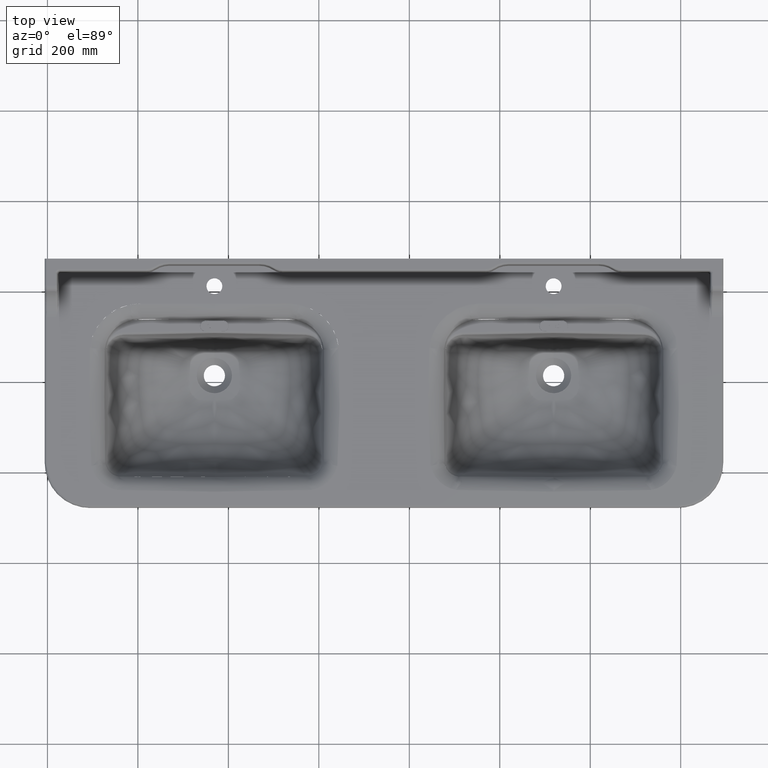
[diagram: clean part render]
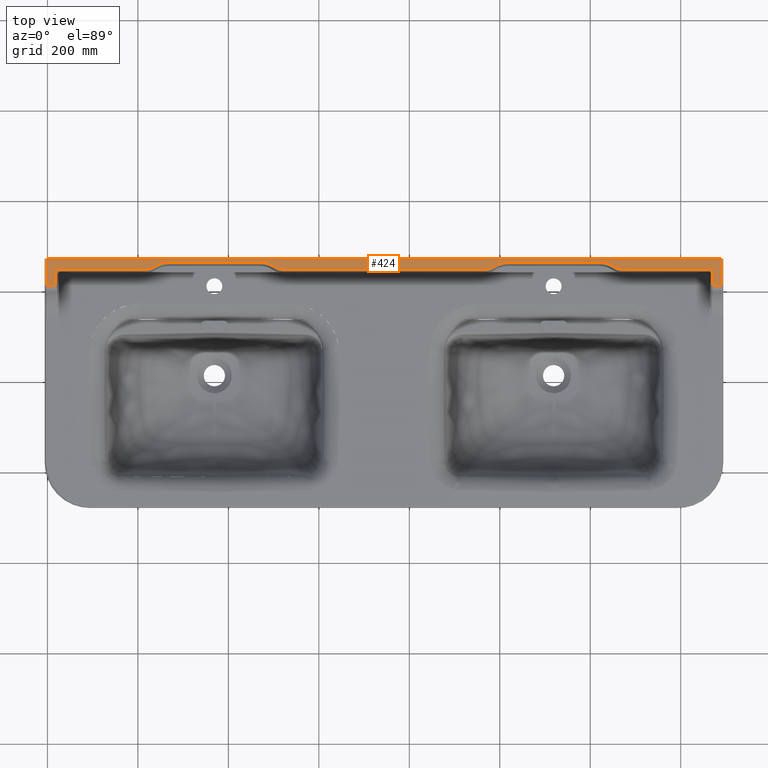
[diagram: same view with one face highlighted and labeled with its STEP entity id]
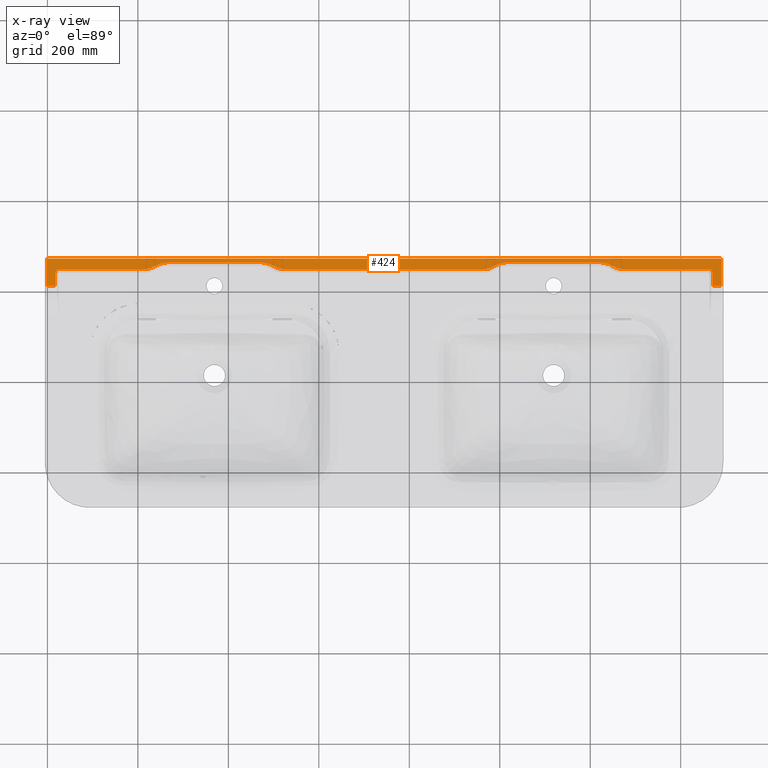
[diagram: x-ray of the same camera — body ghosted, the highlighted face saturated]
A machine part, top view. The second image highlights one B-rep face of the part: STEP entity #424.
The next image is the same camera in x-ray: the body ghosted, the highlighted face saturated — about 0% of this face is hidden behind the body in this view.
In plain terms, the highlighted planar face has unit normal (0, 0, 1).
Its self-contained STEP definition (entity closure, byte-faithful):
#424=ADVANCED_FACE($,(#1069),#7981,.T.);
#1069=FACE_OUTER_BOUND($,#1730,.T.);
#1730=EDGE_LOOP($,(#3823,#3824,#3825,#3826,#3827,#3828,#3829,#3830,#3831,
#3832,#3833,#3834,#3835,#3836,#3837,#3838,#3839,#3840,#3841,#3842,#3843,
#3844,#3845,#3846));
#3823=ORIENTED_EDGE($,*,*,#5426,.F.);
#3824=ORIENTED_EDGE($,*,*,#6288,.F.);
#3825=ORIENTED_EDGE($,*,*,#5423,.F.);
#3826=ORIENTED_EDGE($,*,*,#5671,.F.);
#3827=ORIENTED_EDGE($,*,*,#5412,.F.);
#3828=ORIENTED_EDGE($,*,*,#6264,.T.);
#3829=ORIENTED_EDGE($,*,*,#5381,.F.);
#3830=ORIENTED_EDGE($,*,*,#6048,.F.);
#3831=ORIENTED_EDGE($,*,*,#5472,.F.);
#3832=ORIENTED_EDGE($,*,*,#5469,.F.);
#3833=ORIENTED_EDGE($,*,*,#6289,.F.);
#3834=ORIENTED_EDGE($,*,*,#5467,.F.);
#3835=ORIENTED_EDGE($,*,*,#5462,.F.);
#3836=ORIENTED_EDGE($,*,*,#5459,.F.);
#3837=ORIENTED_EDGE($,*,*,#5456,.F.);
#3838=ORIENTED_EDGE($,*,*,#5453,.F.);
#3839=ORIENTED_EDGE($,*,*,#5450,.F.);
#3840=ORIENTED_EDGE($,*,*,#5447,.F.);
#3841=ORIENTED_EDGE($,*,*,#5444,.F.);
#3842=ORIENTED_EDGE($,*,*,#5441,.F.);
#3843=ORIENTED_EDGE($,*,*,#5438,.F.);
#3844=ORIENTED_EDGE($,*,*,#5435,.F.);
#3845=ORIENTED_EDGE($,*,*,#5432,.F.);
#3846=ORIENTED_EDGE($,*,*,#5429,.F.);
#5381=EDGE_CURVE($,#7038,#7037,#9195,.T.);
#5412=EDGE_CURVE($,#7059,#7057,#9203,.T.);
#5423=EDGE_CURVE($,#7065,#7067,#9206,.T.);
#5426=EDGE_CURVE($,#7069,#7071,#8690,.T.);
#5429=EDGE_CURVE($,#7071,#7073,#9208,.T.);
#5432=EDGE_CURVE($,#7073,#7075,#8694,.T.);
#5435=EDGE_CURVE($,#7075,#7077,#8697,.T.);
#5438=EDGE_CURVE($,#7077,#7079,#9210,.T.);
#5441=EDGE_CURVE($,#7079,#7081,#8701,.T.);
#5444=EDGE_CURVE($,#7081,#7083,#8704,.T.);
#5447=EDGE_CURVE($,#7083,#7085,#9212,.T.);
#5450=EDGE_CURVE($,#7085,#7087,#8708,.T.);
#5453=EDGE_CURVE($,#7087,#7089,#8711,.T.);
#5456=EDGE_CURVE($,#7089,#7091,#9214,.T.);
#5459=EDGE_CURVE($,#7091,#7093,#8715,.T.);
#5462=EDGE_CURVE($,#7093,#7096,#8718,.T.);
#5467=EDGE_CURVE($,#7096,#7097,#9217,.T.);
#5469=EDGE_CURVE($,#7099,#7101,#8723,.T.);
#5472=EDGE_CURVE($,#7101,#7103,#9218,.T.);
#5671=EDGE_CURVE($,#7057,#7065,#9323,.T.);
#6048=EDGE_CURVE($,#7103,#7038,#9525,.T.);
#6264=EDGE_CURVE($,#7059,#7037,#9644,.T.);
#6288=EDGE_CURVE($,#7067,#7069,#9097,.T.);
#6289=EDGE_CURVE($,#7097,#7099,#9098,.T.);
#7037=VERTEX_POINT($,#248005);
#7038=VERTEX_POINT($,#248006);
#7057=VERTEX_POINT($,#248025);
#7059=VERTEX_POINT($,#248027);
#7065=VERTEX_POINT($,#248033);
#7067=VERTEX_POINT($,#248035);
#7069=VERTEX_POINT($,#248037);
#7071=VERTEX_POINT($,#248039);
#7073=VERTEX_POINT($,#248041);
#7075=VERTEX_POINT($,#248043);
#7077=VERTEX_POINT($,#248045);
#7079=VERTEX_POINT($,#248047);
#7081=VERTEX_POINT($,#248049);
#7083=VERTEX_POINT($,#248051);
#7085=VERTEX_POINT($,#248053);
#7087=VERTEX_POINT($,#248055);
#7089=VERTEX_POINT($,#248057);
#7091=VERTEX_POINT($,#248059);
#7093=VERTEX_POINT($,#248061);
#7096=VERTEX_POINT($,#248064);
#7097=VERTEX_POINT($,#248065);
#7099=VERTEX_POINT($,#248067);
#7101=VERTEX_POINT($,#248069);
#7103=VERTEX_POINT($,#248071);
#7981=PLANE($,#10415);
#8690=(
BOUNDED_CURVE()
B_SPLINE_CURVE(3,(#12220,#12221,#12222,#12223,#12224,#12225,#12226,#12227,
#12228,#12229),.UNSPECIFIED.,.F.,.F.)
B_SPLINE_CURVE_WITH_KNOTS((4,2,2,2,4),(2.42861286636754E-15,0.196007158881765,
0.392014317763527,0.588021476645289,0.784028635527051),.UNSPECIFIED.)
CURVE()
GEOMETRIC_REPRESENTATION_ITEM()
RATIONAL_B_SPLINE_CURVE((1.,1.,1.,1.,1.,1.,1.,1.,1.,1.))
REPRESENTATION_ITEM($)
);
#8694=(
BOUNDED_CURVE()
B_SPLINE_CURVE(3,(#12250,#12251,#12252,#12253,#12254,#12255,#12256,#12257,
#12258,#12259,#12260,#12261,#12262,#12263,#12264,#12265,#12266,#12267,#12268,
#12269,#12270,#12271),.UNSPECIFIED.,.F.,.F.)
B_SPLINE_CURVE_WITH_KNOTS((4,2,2,2,2,2,2,2,2,2,4),(0.,0.00215343023223315,
0.00430686046446629,0.00646029069669944,0.00861372092893258,0.00969043604504916,
0.0102287936031074,0.0107671511611657,0.0129205813933989,0.015074011625632,
0.0172274418578652),.UNSPECIFIED.)
CURVE()
GEOMETRIC_REPRESENTATION_ITEM()
RATIONAL_B_SPLINE_CURVE((1.,1.,1.,1.,1.,1.,1.,1.,1.,1.,1.,1.,1.,1.,1.,1.,
1.,1.,1.,1.,1.,1.))
REPRESENTATION_ITEM($)
);
#8697=(
BOUNDED_CURVE()
B_SPLINE_CURVE(2,(#12297,#12298,#12299),.UNSPECIFIED.,.F.,.F.)
B_SPLINE_CURVE_WITH_KNOTS((3,3),(3.61577023155826,4.19466756455424),.UNSPECIFIED.)
CURVE()
GEOMETRIC_REPRESENTATION_ITEM()
RATIONAL_B_SPLINE_CURVE((1.,0.95840138490879,1.))
REPRESENTATION_ITEM($)
);
#8701=(
BOUNDED_CURVE()
B_SPLINE_CURVE(2,(#12313,#12314,#12315),.UNSPECIFIED.,.F.,.F.)
B_SPLINE_CURVE_WITH_KNOTS((3,3),(3.61577023155826,4.19466756455424),.UNSPECIFIED.)
CURVE()
GEOMETRIC_REPRESENTATION_ITEM()
RATIONAL_B_SPLINE_CURVE((1.,0.958401384909011,1.))
REPRESENTATION_ITEM($)
);
#8704=(
BOUNDED_CURVE()
B_SPLINE_CURVE(3,(#12322,#12323,#12324,#12325,#12326,#12327,#12328,#12329,
#12330,#12331,#12332,#12333,#12334,#12335,#12336,#12337,#12338,#12339),.UNSPECIFIED.,
.F.,.F.)
B_SPLINE_CURVE_WITH_KNOTS((4,2,2,2,2,2,2,2,4),(-0.0172826635422491,-0.015122330599468,
-0.0129619976566869,-0.0108016647139057,-0.00864133177112457,-0.00648099882834343,
-0.00432066588556229,-0.00216033294278114,2.16840434497101E-19),.UNSPECIFIED.)
CURVE()
GEOMETRIC_REPRESENTATION_ITEM()
RATIONAL_B_SPLINE_CURVE((1.,1.,1.,1.,1.,1.,1.,1.,1.,1.,1.,1.,1.,1.,1.,1.,
1.,1.))
REPRESENTATION_ITEM($)
);
#8708=(
BOUNDED_CURVE()
B_SPLINE_CURVE(3,(#12368,#12369,#12370,#12371,#12372,#12373,#12374,#12375,
#12376,#12377,#12378,#12379,#12380,#12381,#12382,#12383,#12384,#12385,#12386,
#12387,#12388,#12389),.UNSPECIFIED.,.F.,.F.)
B_SPLINE_CURVE_WITH_KNOTS((4,2,2,2,2,2,2,2,2,2,4),(0.,0.00215343023223313,
0.00430686046446626,0.0064602906966994,0.00861372092893253,0.00969043604504909,
0.0102287936031074,0.0107671511611657,0.0129205813933988,0.0150740116256319,
0.0172274418578651),.UNSPECIFIED.)
CURVE()
GEOMETRIC_REPRESENTATION_ITEM()
RATIONAL_B_SPLINE_CURVE((1.,1.,1.,1.,1.,1.,1.,1.,1.,1.,1.,1.,1.,1.,1.,1.,
1.,1.,1.,1.,1.,1.))
REPRESENTATION_ITEM($)
);
#8711=(
BOUNDED_CURVE()
B_SPLINE_CURVE(2,(#12415,#12416,#12417),.UNSPECIFIED.,.F.,.F.)
B_SPLINE_CURVE_WITH_KNOTS((3,3),(3.61577023155826,4.19466756455424),.UNSPECIFIED.)
CURVE()
GEOMETRIC_REPRESENTATION_ITEM()
RATIONAL_B_SPLINE_CURVE((1.,0.958401384908785,1.))
REPRESENTATION_ITEM($)
);
#8715=(
BOUNDED_CURVE()
B_SPLINE_CURVE(2,(#12431,#12432,#12433),.UNSPECIFIED.,.F.,.F.)
B_SPLINE_CURVE_WITH_KNOTS((3,3),(3.61577023155826,4.19466756455424),.UNSPECIFIED.)
CURVE()
GEOMETRIC_REPRESENTATION_ITEM()
RATIONAL_B_SPLINE_CURVE((1.,0.958401384909014,1.))
REPRESENTATION_ITEM($)
);
#8718=(
BOUNDED_CURVE()
B_SPLINE_CURVE(3,(#12440,#12441,#12442,#12443,#12444,#12445,#12446,#12447,
#12448,#12449,#12450,#12451,#12452,#12453,#12454,#12455,#12456,#12457),.UNSPECIFIED.,
.F.,.F.)
B_SPLINE_CURVE_WITH_KNOTS((4,2,2,2,2,2,2,2,4),(-0.0172826635422491,-0.015122330599468,
-0.0129619976566868,-0.0108016647139057,-0.00864133177112457,-0.00648099882834342,
-0.00432066588556228,-0.00216033294278114,-2.16840434497101E-19),.UNSPECIFIED.)
CURVE()
GEOMETRIC_REPRESENTATION_ITEM()
RATIONAL_B_SPLINE_CURVE((1.,1.,1.,1.,1.,1.,1.,1.,1.,1.,1.,1.,1.,1.,1.,1.,
1.,1.))
REPRESENTATION_ITEM($)
);
#8723=(
BOUNDED_CURVE()
B_SPLINE_CURVE(3,(#12489,#12490,#12491,#12492,#12493,#12494,#12495,#12496,
#12497,#12498),.UNSPECIFIED.,.F.,.F.)
B_SPLINE_CURVE_WITH_KNOTS((4,2,2,2,4),(1.90819582357449E-15,0.196007158881765,
0.392014317763528,0.58802147664529,0.784028635527053),.UNSPECIFIED.)
CURVE()
GEOMETRIC_REPRESENTATION_ITEM()
RATIONAL_B_SPLINE_CURVE((1.,1.,1.,1.,1.,1.,1.,1.,1.,1.))
REPRESENTATION_ITEM($)
);
#9097=(
BOUNDED_CURVE()
B_SPLINE_CURVE(3,(#23916,#23917,#23918,#23919,#23920,#23921,#23922,#23923,
#23924,#23925),.UNSPECIFIED.,.F.,.F.)
B_SPLINE_CURVE_WITH_KNOTS((4,2,2,2,4),(5.49915667165253,5.6951638305343,
5.89117098941606,6.08717814829783,6.28318530717959),.UNSPECIFIED.)
CURVE()
GEOMETRIC_REPRESENTATION_ITEM()
RATIONAL_B_SPLINE_CURVE((1.,1.,1.,1.,1.,1.,1.,1.,1.,1.))
REPRESENTATION_ITEM($)
);
#9098=(
BOUNDED_CURVE()
B_SPLINE_CURVE(3,(#23926,#23927,#23928,#23929,#23930,#23931,#23932,#23933,
#23934,#23935),.UNSPECIFIED.,.F.,.F.)
B_SPLINE_CURVE_WITH_KNOTS((4,2,2,2,4),(5.49915667165253,5.69516383053429,
5.89117098941606,6.08717814829782,6.28318530717959),.UNSPECIFIED.)
CURVE()
GEOMETRIC_REPRESENTATION_ITEM()
RATIONAL_B_SPLINE_CURVE((1.,1.,1.,1.,1.,1.,1.,1.,1.,1.))
REPRESENTATION_ITEM($)
);
#9195=B_SPLINE_CURVE_WITH_KNOTS($,1,(#12062,#12063),.UNSPECIFIED.,.F.,.F.,
(2,2),(5.71238898038469,6.71238898038469),.UNSPECIFIED.);
#9203=B_SPLINE_CURVE_WITH_KNOTS($,1,(#12147,#12148),.UNSPECIFIED.,.F.,.F.,
(2,2),(1.5707963267949,2.5707963267949),.UNSPECIFIED.);
#9206=B_SPLINE_CURVE_WITH_KNOTS($,1,(#12213,#12214),.UNSPECIFIED.,.F.,.F.,
(2,2),(5.60766922514539,6.60766922514539),.UNSPECIFIED.);
#9208=B_SPLINE_CURVE_WITH_KNOTS($,1,(#12243,#12244),.UNSPECIFIED.,.F.,.F.,
(2,2),(4.03687289836089,5.03687289836089),.UNSPECIFIED.);
#9210=B_SPLINE_CURVE_WITH_KNOTS($,1,(#12306,#12307),.UNSPECIFIED.,.F.,.F.,
(2,2),(4.03687289856066,5.03687289856066),.UNSPECIFIED.);
#9212=B_SPLINE_CURVE_WITH_KNOTS($,1,(#12361,#12362),.UNSPECIFIED.,.F.,.F.,
(2,2),(4.03687289836094,5.03687289836094),.UNSPECIFIED.);
#9214=B_SPLINE_CURVE_WITH_KNOTS($,1,(#12424,#12425),.UNSPECIFIED.,.F.,.F.,
(2,2),(4.03687289856066,5.03687289856066),.UNSPECIFIED.);
#9217=B_SPLINE_CURVE_WITH_KNOTS($,1,(#12484,#12485),.UNSPECIFIED.,.F.,.F.,
(2,2),(4.03687289856066,5.03687289856066),.UNSPECIFIED.);
#9218=B_SPLINE_CURVE_WITH_KNOTS($,1,(#12512,#12513),.UNSPECIFIED.,.F.,.F.,
(2,2),(4.03687289855019,5.03687289855019),.UNSPECIFIED.);
#9323=B_SPLINE_CURVE_WITH_KNOTS($,1,(#15541,#15542),.UNSPECIFIED.,.F.,.F.,
(2,2),(0.,1.),.UNSPECIFIED.);
#9525=B_SPLINE_CURVE_WITH_KNOTS($,1,(#20845,#20846),.UNSPECIFIED.,.F.,.F.,
(2,2),(2.,3.),.UNSPECIFIED.);
#9644=B_SPLINE_CURVE_WITH_KNOTS($,1,(#23531,#23532),.UNSPECIFIED.,.F.,.F.,
(2,2),(5.,6.),.UNSPECIFIED.);
#10415=AXIS2_PLACEMENT_3D($,#247054,#10529,$);
#10529=DIRECTION($,(0.,0.,1.));
#12062=CARTESIAN_POINT($,(-400.914848342291,209.795639608981,249.999999999979));
#12063=CARTESIAN_POINT($,(-400.914848342348,269.151754377924,249.999999999963));
#12147=CARTESIAN_POINT($,(1089.08515165765,269.151754377924,249.999999999963));
#12148=CARTESIAN_POINT($,(1089.08515165771,209.795639609094,249.999999999979));
#12213=CARTESIAN_POINT($,(1071.18832455865,209.795639608924,249.999999999963));
#12214=CARTESIAN_POINT($,(1071.18832455865,236.268631931924,249.999999999768));
#12220=CARTESIAN_POINT($,(1068.26506353365,243.331666253924,249.999999999963));
#12221=CARTESIAN_POINT($,(1067.80306502565,243.793664760924,249.999999999963));
#12222=CARTESIAN_POINT($,(1067.29554228765,244.210095536924,249.999999999963));
#12223=CARTESIAN_POINT($,(1066.20880403265,244.935945537924,249.999999999963));
#12224=CARTESIAN_POINT($,(1065.62962039965,245.245341737924,249.999999999963));
#12225=CARTESIAN_POINT($,(1064.42174818365,245.745258007924,249.999999999963));
#12226=CARTESIAN_POINT($,(1063.79308925565,245.935765803924,249.999999999963));
#12227=CARTESIAN_POINT($,(1062.51033970965,246.190603567924,249.999999999963));
#12228=CARTESIAN_POINT($,(1061.85628816465,246.254927278924,249.999999999963));
#12229=CARTESIAN_POINT($,(1061.20202921165,246.254927278924,249.999999999963));
#12243=CARTESIAN_POINT($,(1061.20202921165,246.254927278924,249.999999999963));
#12244=CARTESIAN_POINT($,(869.452420476973,246.25492727908,249.999999999866));
#12250=CARTESIAN_POINT($,(869.452420476973,246.25492727908,249.999999999866));
#12251=CARTESIAN_POINT($,(868.724278780956,246.254927279068,249.99999999987));
#12252=CARTESIAN_POINT($,(868.00064543394,246.281429079057,249.999999999874));
#12253=CARTESIAN_POINT($,(866.562153211907,246.385929729034,249.999999999882));
#12254=CARTESIAN_POINT($,(865.847292435891,246.463931448022,249.999999999886));
#12255=CARTESIAN_POINT($,(864.426229109858,246.670777375999,249.999999999894));
#12256=CARTESIAN_POINT($,(863.720026674841,246.799622263988,249.999999999898));
#12257=CARTESIAN_POINT($,(862.316302976808,247.108289266965,249.999999999907));
#12258=CARTESIAN_POINT($,(861.618781476791,247.288109996953,249.999999999911));
#12259=CARTESIAN_POINT($,(860.579129496766,247.596775097935,249.999999999917));
#12260=CARTESIAN_POINT($,(860.233684968757,247.706158852929,249.999999999919));
#12261=CARTESIAN_POINT($,(859.717202662744,247.88012605292,249.999999999922));
#12262=CARTESIAN_POINT($,(859.54517146274,247.939819114918,249.999999999923));
#12263=CARTESIAN_POINT($,(859.202551931732,248.062216808912,249.999999999925));
#12264=CARTESIAN_POINT($,(859.031979870728,248.124911594909,249.999999999926));
#12265=CARTESIAN_POINT($,(858.182786699707,248.445821851894,249.999999999931));
#12266=CARTESIAN_POINT($,(857.51515233869,248.726316589882,249.999999999935));
#12267=CARTESIAN_POINT($,(856.203014949656,249.334212492859,249.999999999943));
#12268=CARTESIAN_POINT($,(855.55851224964,249.661614322848,249.999999999947));
#12269=CARTESIAN_POINT($,(854.292696117607,250.363441891825,249.999999999955));
#12270=CARTESIAN_POINT($,(853.671380682591,250.737867232813,249.99999999996));
#12271=CARTESIAN_POINT($,(853.061876053574,251.136235559802,249.999999999963));
#12297=CARTESIAN_POINT($,(853.061876053574,251.136235559802,249.999999999963));
#12298=CARTESIAN_POINT($,(837.580250068972,261.254927279167,249.999999999963));
#12299=CARTESIAN_POINT($,(819.085151657807,261.25492727908,250.000000000017));
#12306=CARTESIAN_POINT($,(819.085151657807,261.25492727908,250.000000000017));
#12307=CARTESIAN_POINT($,(619.085151657808,261.254927279224,250.000000000017));
#12313=CARTESIAN_POINT($,(619.085151657808,261.254927279224,250.000000000017));
#12314=CARTESIAN_POINT($,(600.590053246413,261.25492727926,249.999999999963));
#12315=CARTESIAN_POINT($,(585.10842726163,251.136235559749,249.999999999945));
#12322=CARTESIAN_POINT($,(585.10842726163,251.136235559749,249.999999999945));
#12323=CARTESIAN_POINT($,(584.499280795631,250.738101325756,249.999999999946));
#12324=CARTESIAN_POINT($,(583.878877538632,250.364234173764,249.999999999947));
#12325=CARTESIAN_POINT($,(582.616091231634,249.663910976778,249.999999999948));
#12326=CARTESIAN_POINT($,(581.973705603635,249.337455804785,249.999999999949));
#12327=CARTESIAN_POINT($,(580.667118178636,248.7315943228,249.999999999951));
#12328=CARTESIAN_POINT($,(580.002916386637,248.452188000807,249.999999999951));
#12329=CARTESIAN_POINT($,(578.652523841639,247.940796865822,249.999999999953));
#12330=CARTESIAN_POINT($,(577.96633239264,247.708809582829,249.999999999954));
#12331=CARTESIAN_POINT($,(576.571440716642,247.293393442844,249.999999999955));
#12332=CARTESIAN_POINT($,(575.870132060643,247.112165901851,249.999999999956));
#12333=CARTESIAN_POINT($,(574.459980825645,246.801432707866,249.999999999957));
#12334=CARTESIAN_POINT($,(573.751136153646,246.671928693874,249.999999999958));
#12335=CARTESIAN_POINT($,(572.325967942648,246.464239333888,249.99999999996));
#12336=CARTESIAN_POINT($,(571.609644401649,246.386054000895,249.99999999996));
#12337=CARTESIAN_POINT($,(570.169460589651,246.28139904391,249.999999999962));
#12338=CARTESIAN_POINT($,(569.445598637652,246.254927278917,249.999999999963));
#12339=CARTESIAN_POINT($,(568.717882838652,246.254927278924,249.999999999963));
#12361=CARTESIAN_POINT($,(568.717882838652,246.254927278924,249.999999999963));
#12362=CARTESIAN_POINT($,(119.452420476972,246.25492727908,249.999999999866));
#12368=CARTESIAN_POINT($,(119.452420476972,246.25492727908,249.999999999866));
#12369=CARTESIAN_POINT($,(118.724278780956,246.254927279068,249.99999999987));
#12370=CARTESIAN_POINT($,(118.000645433939,246.281429079057,249.999999999874));
#12371=CARTESIAN_POINT($,(116.562153211907,246.385929729034,249.999999999882));
#12372=CARTESIAN_POINT($,(115.84729243589,246.463931448023,249.999999999886));
#12373=CARTESIAN_POINT($,(114.426229109857,246.670777375999,249.999999999894));
#12374=CARTESIAN_POINT($,(113.72002667484,246.799622263988,249.999999999898));
#12375=CARTESIAN_POINT($,(112.316302976807,247.108289266965,249.999999999907));
#12376=CARTESIAN_POINT($,(111.61878147679,247.288109996953,249.999999999911));
#12377=CARTESIAN_POINT($,(110.579129496765,247.596775097936,249.999999999917));
#12378=CARTESIAN_POINT($,(110.233684968757,247.70615885293,249.999999999919));
#12379=CARTESIAN_POINT($,(109.717202662744,247.880126052921,249.999999999922));
#12380=CARTESIAN_POINT($,(109.54517146274,247.939819114918,249.999999999923));
#12381=CARTESIAN_POINT($,(109.202551931731,248.062216808912,249.999999999925));
#12382=CARTESIAN_POINT($,(109.031979870727,248.124911594909,249.999999999926));
#12383=CARTESIAN_POINT($,(108.182786699706,248.445821851894,249.999999999931));
#12384=CARTESIAN_POINT($,(107.515152338689,248.726316589883,249.999999999935));
#12385=CARTESIAN_POINT($,(106.203014949656,249.334212492859,249.999999999943));
#12386=CARTESIAN_POINT($,(105.558512249639,249.661614322848,249.999999999947));
#12387=CARTESIAN_POINT($,(104.292696117606,250.363441891825,249.999999999955));
#12388=CARTESIAN_POINT($,(103.67138068259,250.737867232814,249.999999999959));
#12389=CARTESIAN_POINT($,(103.061876053574,251.136235559803,249.999999999963));
#12415=CARTESIAN_POINT($,(103.061876053574,251.136235559803,249.999999999963));
#12416=CARTESIAN_POINT($,(87.5802500689721,261.254927279168,249.999999999964));
#12417=CARTESIAN_POINT($,(69.0851516578079,261.25492727908,250.000000000017));
#12424=CARTESIAN_POINT($,(69.0851516578079,261.25492727908,250.000000000017));
#12425=CARTESIAN_POINT($,(-130.914848342192,261.254927279224,250.000000000017));
#12431=CARTESIAN_POINT($,(-130.914848342192,261.254927279224,250.000000000017));
#12432=CARTESIAN_POINT($,(-149.409946753587,261.25492727926,249.999999999962));
#12433=CARTESIAN_POINT($,(-164.89157273837,251.136235559749,249.999999999945));
#12440=CARTESIAN_POINT($,(-164.89157273837,251.136235559749,249.999999999945));
#12441=CARTESIAN_POINT($,(-165.500719204369,250.738101325756,249.999999999946));
#12442=CARTESIAN_POINT($,(-166.121122461368,250.364234173764,249.999999999947));
#12443=CARTESIAN_POINT($,(-167.383908768366,249.663910976778,249.999999999948));
#12444=CARTESIAN_POINT($,(-168.026294396365,249.337455804785,249.999999999949));
#12445=CARTESIAN_POINT($,(-169.332881821363,248.7315943228,249.999999999951));
#12446=CARTESIAN_POINT($,(-169.997083613363,248.452188000807,249.999999999951));
#12447=CARTESIAN_POINT($,(-171.347476158361,247.940796865822,249.999999999953));
#12448=CARTESIAN_POINT($,(-172.03366760736,247.708809582829,249.999999999954));
#12449=CARTESIAN_POINT($,(-173.428559283358,247.293393442844,249.999999999955));
#12450=CARTESIAN_POINT($,(-174.129867939357,247.112165901851,249.999999999956));
#12451=CARTESIAN_POINT($,(-175.540019174355,246.801432707866,249.999999999957));
#12452=CARTESIAN_POINT($,(-176.248863846354,246.671928693874,249.999999999958));
#12453=CARTESIAN_POINT($,(-177.674032057352,246.464239333888,249.99999999996));
#12454=CARTESIAN_POINT($,(-178.390355598351,246.386054000895,249.99999999996));
#12455=CARTESIAN_POINT($,(-179.830539410349,246.28139904391,249.999999999962));
#12456=CARTESIAN_POINT($,(-180.554401362349,246.254927278917,249.999999999963));
#12457=CARTESIAN_POINT($,(-181.282117161348,246.254927278924,249.999999999963));
#12484=CARTESIAN_POINT($,(-181.282117161348,246.254927278924,249.999999999963));
#12485=CARTESIAN_POINT($,(-373.031725896075,246.25492727908,249.9999999999));
#12489=CARTESIAN_POINT($,(-380.094760218348,243.331666253924,249.999999999963));
#12490=CARTESIAN_POINT($,(-380.556758725348,242.869667745924,249.999999999963));
#12491=CARTESIAN_POINT($,(-380.973189501348,242.362145007924,249.999999999963));
#12492=CARTESIAN_POINT($,(-381.699039502348,241.275406752924,249.999999999963));
#12493=CARTESIAN_POINT($,(-382.008435702348,240.696223119924,249.999999999963));
#12494=CARTESIAN_POINT($,(-382.508351972348,239.488350903924,249.999999999963));
#12495=CARTESIAN_POINT($,(-382.698859768348,238.859691975924,249.999999999963));
#12496=CARTESIAN_POINT($,(-382.953697532348,237.576942429924,249.999999999963));
#12497=CARTESIAN_POINT($,(-383.018021243348,236.922890884924,249.999999999963));
#12498=CARTESIAN_POINT($,(-383.018021243348,236.268631931924,249.999999999963));
#12512=CARTESIAN_POINT($,(-383.018021243348,236.268631931924,249.999999999963));
#12513=CARTESIAN_POINT($,(-383.018021243425,209.795639609038,250.000000000068));
#15541=CARTESIAN_POINT($,(1089.08515165771,209.795639609094,249.999999999979));
#15542=CARTESIAN_POINT($,(1071.18832455865,209.795639608924,249.999999999963));
#20845=CARTESIAN_POINT($,(-383.018021243425,209.795639609038,250.000000000068));
#20846=CARTESIAN_POINT($,(-400.914848342291,209.795639608981,249.999999999979));
#23531=CARTESIAN_POINT($,(1089.08515165765,269.151754377924,249.999999999963));
#23532=CARTESIAN_POINT($,(-400.914848342348,269.151754377924,249.999999999963));
#23916=CARTESIAN_POINT($,(1071.18832455865,236.268631931924,249.999999999768));
#23917=CARTESIAN_POINT($,(1071.18832455865,236.922890884924,249.999999999783));
#23918=CARTESIAN_POINT($,(1071.12400084765,237.576942429924,249.999999999799));
#23919=CARTESIAN_POINT($,(1070.86916308365,238.859691975924,249.999999999832));
#23920=CARTESIAN_POINT($,(1070.67865528765,239.488350903924,249.999999999849));
#23921=CARTESIAN_POINT($,(1070.17873901765,240.696223119924,249.999999999882));
#23922=CARTESIAN_POINT($,(1069.86934281765,241.275406752924,249.999999999899));
#23923=CARTESIAN_POINT($,(1069.14349281665,242.362145007924,249.999999999932));
#23924=CARTESIAN_POINT($,(1068.72706204065,242.869667745924,249.999999999948));
#23925=CARTESIAN_POINT($,(1068.26506353365,243.331666253924,249.999999999963));
#23926=CARTESIAN_POINT($,(-373.031725896075,246.25492727908,249.9999999999));
#23927=CARTESIAN_POINT($,(-373.685984849096,246.254927279067,249.999999999905));
#23928=CARTESIAN_POINT($,(-374.340036394119,246.190603568054,249.99999999991));
#23929=CARTESIAN_POINT($,(-375.622785940165,245.935765804029,249.999999999921));
#23930=CARTESIAN_POINT($,(-376.251444868188,245.745258008015,249.999999999926));
#23931=CARTESIAN_POINT($,(-377.459317084235,245.245341737988,249.999999999937));
#23932=CARTESIAN_POINT($,(-378.038500717258,244.935945537975,249.999999999943));
#23933=CARTESIAN_POINT($,(-379.125238972304,244.210095536949,249.999999999953));
#23934=CARTESIAN_POINT($,(-379.632761710326,243.793664760936,249.999999999958));
#23935=CARTESIAN_POINT($,(-380.094760218348,243.331666253924,249.999999999963));
#247054=CARTESIAN_POINT($,(-400.914848342348,269.151754377924,249.999999999963));
#248005=CARTESIAN_POINT($,(-400.914848342348,269.151754377924,249.999999999963));
#248006=CARTESIAN_POINT($,(-400.914848342291,209.795639608981,249.999999999979));
#248025=CARTESIAN_POINT($,(1089.08515165771,209.795639609094,249.999999999979));
#248027=CARTESIAN_POINT($,(1089.08515165765,269.151754377924,249.999999999963));
#248033=CARTESIAN_POINT($,(1071.18832455865,209.795639608924,249.999999999963));
#248035=CARTESIAN_POINT($,(1071.18832455865,236.268631931924,249.999999999768));
#248037=CARTESIAN_POINT($,(1068.26506353365,243.331666253924,249.999999999963));
#248039=CARTESIAN_POINT($,(1061.20202921165,246.254927278924,249.999999999963));
#248041=CARTESIAN_POINT($,(869.452420476973,246.25492727908,249.999999999866));
#248043=CARTESIAN_POINT($,(853.061876053574,251.136235559802,249.999999999963));
#248045=CARTESIAN_POINT($,(819.085151657807,261.25492727908,250.000000000017));
#248047=CARTESIAN_POINT($,(619.085151657808,261.254927279224,250.000000000017));
#248049=CARTESIAN_POINT($,(585.10842726163,251.136235559749,249.999999999945));
#248051=CARTESIAN_POINT($,(568.717882838652,246.254927278924,249.999999999963));
#248053=CARTESIAN_POINT($,(119.452420476972,246.25492727908,249.999999999866));
#248055=CARTESIAN_POINT($,(103.061876053574,251.136235559803,249.999999999963));
#248057=CARTESIAN_POINT($,(69.0851516578079,261.25492727908,250.000000000017));
#248059=CARTESIAN_POINT($,(-130.914848342192,261.254927279224,250.000000000017));
#248061=CARTESIAN_POINT($,(-164.89157273837,251.136235559749,249.999999999945));
#248064=CARTESIAN_POINT($,(-181.282117161348,246.254927278924,249.999999999963));
#248065=CARTESIAN_POINT($,(-373.031725896075,246.25492727908,249.9999999999));
#248067=CARTESIAN_POINT($,(-380.094760218348,243.331666253924,249.999999999963));
#248069=CARTESIAN_POINT($,(-383.018021243348,236.268631931924,249.999999999963));
#248071=CARTESIAN_POINT($,(-383.018021243425,209.795639609038,250.000000000068));